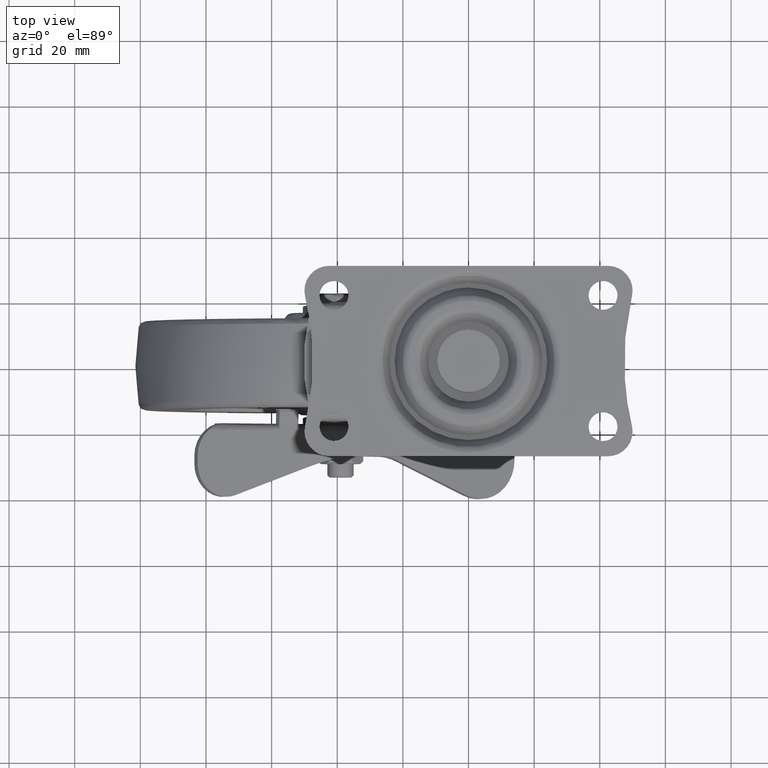
[diagram: clean part render]
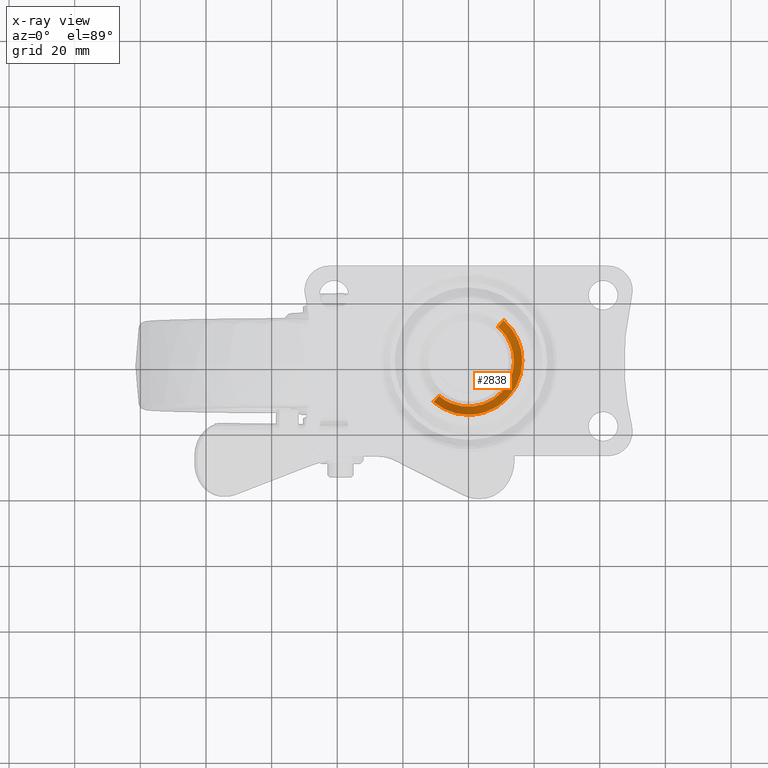
[diagram: x-ray — body ghosted, one internal face saturated and labeled with its STEP entity id]
A machine part, top view, then the same camera in x-ray: the body is ghosted and one INTERNAL B-rep face — a face not visible from any outside direction — is saturated and labeled: STEP entity #2838.
In plain terms, the highlighted face is a freeform B-spline surface patch.
Its self-contained STEP definition (entity closure, byte-faithful):
#2726=CARTESIAN_POINT('',(-8.945161657950617,-10.473438646018019,-4.561251026486734));
#2727=CARTESIAN_POINT('',(1.528276988067389,-19.418600303968642,-4.561251026486735));
#2728=CARTESIAN_POINT('',(10.473438646018010,-8.945161657950632,-4.561251026486734));
#2729=CARTESIAN_POINT('',(19.418600303968628,1.528276988067374,-4.561251026486735));
#2730=CARTESIAN_POINT('',(8.945161657950617,10.473438646017989,-4.561251026486734));
#2731=CARTESIAN_POINT('',(-10.698200860527541,-12.525983835733481,0.114031275662168));
#2732=CARTESIAN_POINT('',(1.827782975205928,-23.224184696261009,0.114031275662168));
#2733=CARTESIAN_POINT('',(12.525983835733459,-10.698200860527550,0.114031275662168));
#2734=CARTESIAN_POINT('',(23.224184696260995,1.827782975205914,0.114031275662168));
#2735=CARTESIAN_POINT('',(10.698200860527541,12.525983835733451,0.114031275662168));
#2743=(BOUNDED_SURFACE()B_SPLINE_SURFACE(2,1,((#2726,#2731),(#2727,#2732),(#2728,#2733),(#2729,#2734),(#2730,#2735)),.UNSPECIFIED.,.F.,.F.,.U.)B_SPLINE_SURFACE_WITH_KNOTS((3,2,3),(2,2),(0.0,27.292959926913809,54.585919853827633),(0.0,5.398550991366324),.UNSPECIFIED.)GEOMETRIC_REPRESENTATION_ITEM()RATIONAL_B_SPLINE_SURFACE(((1.0,1.0),(0.707106781186548,0.707106781186548),(1.0,1.0),(0.707106781186548,0.707106781186548),(1.0,1.0)))REPRESENTATION_ITEM('')SURFACE());
#2744=CARTESIAN_POINT('',(-0.000002491606813,-16.406922515515429,0.0));
#2745=VERTEX_POINT('',#2744);
#2746=CARTESIAN_POINT('',(-10.655444306258261,-12.475922342718810,0.000000266403579));
#2747=VERTEX_POINT('',#2746);
#2748=CARTESIAN_POINT('',(-0.000002491606813,-16.406922515515429,0.0));
#2749=CARTESIAN_POINT('',(-1.570511377430712,-16.407440506576972,0.000000039265304));
#2750=CARTESIAN_POINT('',(-4.409203869964057,-15.996259285573380,0.000000110237285));
#2751=CARTESIAN_POINT('',(-7.988948236979956,-14.469225982298800,0.000000199736785));
#2752=CARTESIAN_POINT('',(-9.874664585841678,-13.142849156010350,0.000000246882799));
#2753=CARTESIAN_POINT('',(-10.655444306258261,-12.475922342718810,0.000000266403579));
#2754=B_SPLINE_CURVE_WITH_KNOTS('',3,(#2748,#2749,#2750,#2751,#2752,#2753),.UNSPECIFIED.,.F.,.U.,(4,1,1,4),(0.000000052538997,4.711468000546199,8.516858273561873,11.597426852894600),.UNSPECIFIED.);
#2755=EDGE_CURVE('',#2745,#2747,#2754,.T.);
#2756=ORIENTED_EDGE('',*,*,#2755,.T.);
#2757=CARTESIAN_POINT('',(-8.986875857208382,-10.522279698120141,-4.450001000337206));
#2758=VERTEX_POINT('',#2757);
#2759=CARTESIAN_POINT('',(-8.986875857208382,-10.522279698120141,-4.450001000337206));
#2760=CARTESIAN_POINT('',(-10.655444306258261,-12.475922342718810,0.000000266403579));
#2761=QUASI_UNIFORM_CURVE('',1,(#2759,#2760),.UNSPECIFIED.,.F.,.U.);
#2762=EDGE_CURVE('',#2758,#2747,#2761,.T.);
#2763=ORIENTED_EDGE('',*,*,#2762,.F.);
#2764=CARTESIAN_POINT('',(12.126080548170419,-6.666369194403476,-4.450001001450472));
#2765=VERTEX_POINT('',#2764);
#2766=CARTESIAN_POINT('',(12.126080548170419,-6.666369194403476,-4.450001001450472));
#2767=CARTESIAN_POINT('',(11.540927905006299,-7.731579001791275,-4.450001001428887));
#2768=CARTESIAN_POINT('',(10.393224319754550,-9.290111253617488,-4.450001001381391));
#2769=CARTESIAN_POINT('',(8.382568926064536,-11.083615016000470,-4.450001001289154));
#2770=CARTESIAN_POINT('',(6.652135870654564,-12.190067298812410,-4.450001001205560));
#2771=CARTESIAN_POINT('',(4.431819128407630,-13.190671520517579,-4.450001001094224));
#2772=CARTESIAN_POINT('',(2.056284546050984,-13.779630946717170,-4.450001000970469));
#2773=CARTESIAN_POINT('',(-0.765423437035878,-13.898066574843490,-4.450001000817845));
#2774=CARTESIAN_POINT('',(-3.183476512561416,-13.544361986656330,-4.450001000682663));
#2775=CARTESIAN_POINT('',(-6.101047898414830,-12.559696325638100,-4.450001000514150));
#2776=CARTESIAN_POINT('',(-7.917251391505540,-11.436816796461100,-4.450001000404336));
#2777=CARTESIAN_POINT('',(-8.986875857208382,-10.522279698120141,-4.450001000337206));
#2778=B_SPLINE_CURVE_WITH_KNOTS('',3,(#2766,#2767,#2768,#2769,#2770,#2771,#2772,#2773,#2774,#2775,#2776,#2777),.UNSPECIFIED.,.F.,.U.,(4,1,1,1,1,1,1,1,1,4),(0.000000279485153,3.645925961431303,5.756745601637135,8.059466367349621,9.786537757220263,13.048556065088400,15.351313946068499,18.229706487722730,20.340553736500620,24.562135702327559),.UNSPECIFIED.);
#2779=EDGE_CURVE('',#2765,#2758,#2778,.T.);
#2780=ORIENTED_EDGE('',*,*,#2779,.F.);
#2781=CARTESIAN_POINT('',(13.837713240271460,-1.421085E-014,-4.450001000000046));
#2782=VERTEX_POINT('',#2781);
#2783=CARTESIAN_POINT('',(13.837713240271460,-1.421085E-014,-4.450001000000046));
#2784=CARTESIAN_POINT('',(13.838161461024720,-1.304221854352387,-4.450001000266235));
#2785=CARTESIAN_POINT('',(13.507416080071090,-3.622435394978351,-4.450001000756768));
#2786=CARTESIAN_POINT('',(12.614875378520550,-5.777547639932950,-4.450001001243421));
#2787=CARTESIAN_POINT('',(12.126080548170419,-6.666369194403476,-4.450001001450472));
#2788=B_SPLINE_CURVE_WITH_KNOTS('',3,(#2783,#2784,#2785,#2786,#2787),.UNSPECIFIED.,.F.,.U.,(4,1,4),(0.000000016610857,3.912551336761753,6.955664823633470),.UNSPECIFIED.);
#2789=EDGE_CURVE('',#2782,#2765,#2788,.T.);
#2790=ORIENTED_EDGE('',*,*,#2789,.F.);
#2791=CARTESIAN_POINT('',(8.986875857208382,10.522279698120110,-4.450001000337204));
#2792=VERTEX_POINT('',#2791);
#2793=CARTESIAN_POINT('',(8.986875857208382,10.522279698120110,-4.450001000337204));
#2794=CARTESIAN_POINT('',(10.076420748285550,9.592709125359832,-4.450001000272774));
#2795=CARTESIAN_POINT('',(11.592955342985491,7.821761030803549,-4.450001000179341));
#2796=CARTESIAN_POINT('',(12.867331943547310,5.242345903048118,-4.450001000092220));
#2797=CARTESIAN_POINT('',(13.632249527765650,2.801806751653626,-4.450001000032893));
#2798=CARTESIAN_POINT('',(13.838024453386080,1.120815692384168,-4.450001000008869));
#2799=CARTESIAN_POINT('',(13.837713240271460,-1.421085E-014,-4.450001000000046));
#2800=B_SPLINE_CURVE_WITH_KNOTS('',3,(#2793,#2794,#2795,#2796,#2797,#2798,#2799),.UNSPECIFIED.,.F.,.U.,(4,1,1,1,4),(0.000000076708927,4.296340802886602,6.911482898786208,8.592666524051651,11.955016784423220),.UNSPECIFIED.);
#2801=EDGE_CURVE('',#2792,#2782,#2800,.T.);
#2802=ORIENTED_EDGE('',*,*,#2801,.F.);
#2803=CARTESIAN_POINT('',(10.655444306258270,12.475922342718800,0.000000266403584));
#2804=VERTEX_POINT('',#2803);
#2805=CARTESIAN_POINT('',(8.986875857208382,10.522279698120110,-4.450001000337204));
#2806=CARTESIAN_POINT('',(10.655444306258270,12.475922342718800,0.000000266403584));
#2807=QUASI_UNIFORM_CURVE('',1,(#2805,#2806),.UNSPECIFIED.,.F.,.U.);
#2808=EDGE_CURVE('',#2792,#2804,#2807,.T.);
#2809=ORIENTED_EDGE('',*,*,#2808,.T.);
#2810=CARTESIAN_POINT('',(16.406922515515600,-1.421085E-014,0.0));
#2811=VERTEX_POINT('',#2810);
#2812=CARTESIAN_POINT('',(10.655444306258270,12.475922342718800,0.000000266403584));
#2813=CARTESIAN_POINT('',(11.609950851058880,11.661004174708250,0.000000249002296));
#2814=CARTESIAN_POINT('',(13.077381854142070,10.082725706114200,0.000000215300656));
#2815=CARTESIAN_POINT('',(14.595673549406900,7.625244485670019,0.000000162825033));
#2816=CARTESIAN_POINT('',(15.645239207851620,5.176919695774778,0.000000110544930));
#2817=CARTESIAN_POINT('',(16.269723661927401,2.657747134867334,0.000000056751985));
#2818=CARTESIAN_POINT('',(16.406937783120132,0.812074406414108,0.000000017340564));
#2819=CARTESIAN_POINT('',(16.406922515515600,-1.421085E-014,0.0));
#2820=B_SPLINE_CURVE_WITH_KNOTS('',3,(#2812,#2813,#2814,#2815,#2816,#2817,#2818,#2819),.UNSPECIFIED.,.F.,.U.,(4,1,1,1,1,4),(0.000000062764405,3.765150778264516,6.422943679286270,8.637681291601492,11.738414254791049,14.174671439188000),.UNSPECIFIED.);
#2821=EDGE_CURVE('',#2804,#2811,#2820,.T.);
#2822=ORIENTED_EDGE('',*,*,#2821,.T.);
#2823=CARTESIAN_POINT('',(16.406922515515600,-1.421085E-014,0.0));
#2824=CARTESIAN_POINT('',(16.407082248601860,-1.208049040999351,0.0));
#2825=CARTESIAN_POINT('',(16.131554389503961,-3.691242858357314,0.0));
#2826=CARTESIAN_POINT('',(14.990529335193029,-6.943001591077570,0.0));
#2827=CARTESIAN_POINT('',(13.155027479509039,-10.005321658044600,0.0));
#2828=CARTESIAN_POINT('',(10.715962920221470,-12.631212102622159,0.0));
#2829=CARTESIAN_POINT('',(7.725963176317260,-14.602410467012900,0.0));
#2830=CARTESIAN_POINT('',(4.160660984699942,-16.028080832086779,0.0));
#2831=CARTESIAN_POINT('',(1.610850834776900,-16.407691441007589,0.0));
#2832=CARTESIAN_POINT('',(-0.000002491606813,-16.406922515515429,0.0));
#2833=B_SPLINE_CURVE_WITH_KNOTS('',3,(#2823,#2824,#2825,#2826,#2827,#2828,#2829,#2830,#2831,#2832),.UNSPECIFIED.,.F.,.U.,(4,1,1,1,1,1,1,4),(0.000000223623225,3.624156006648462,7.449753311352072,10.268605261646311,14.295380464460710,18.121002275116300,20.939855076815778,25.772096733652219),.UNSPECIFIED.);
#2834=EDGE_CURVE('',#2811,#2745,#2833,.T.);
#2835=ORIENTED_EDGE('',*,*,#2834,.T.);
#2836=EDGE_LOOP('',(#2756,#2763,#2780,#2790,#2802,#2809,#2822,#2835));
#2837=FACE_OUTER_BOUND('',#2836,.T.);
#2838=ADVANCED_FACE('',(#2837),#2743,.T.);